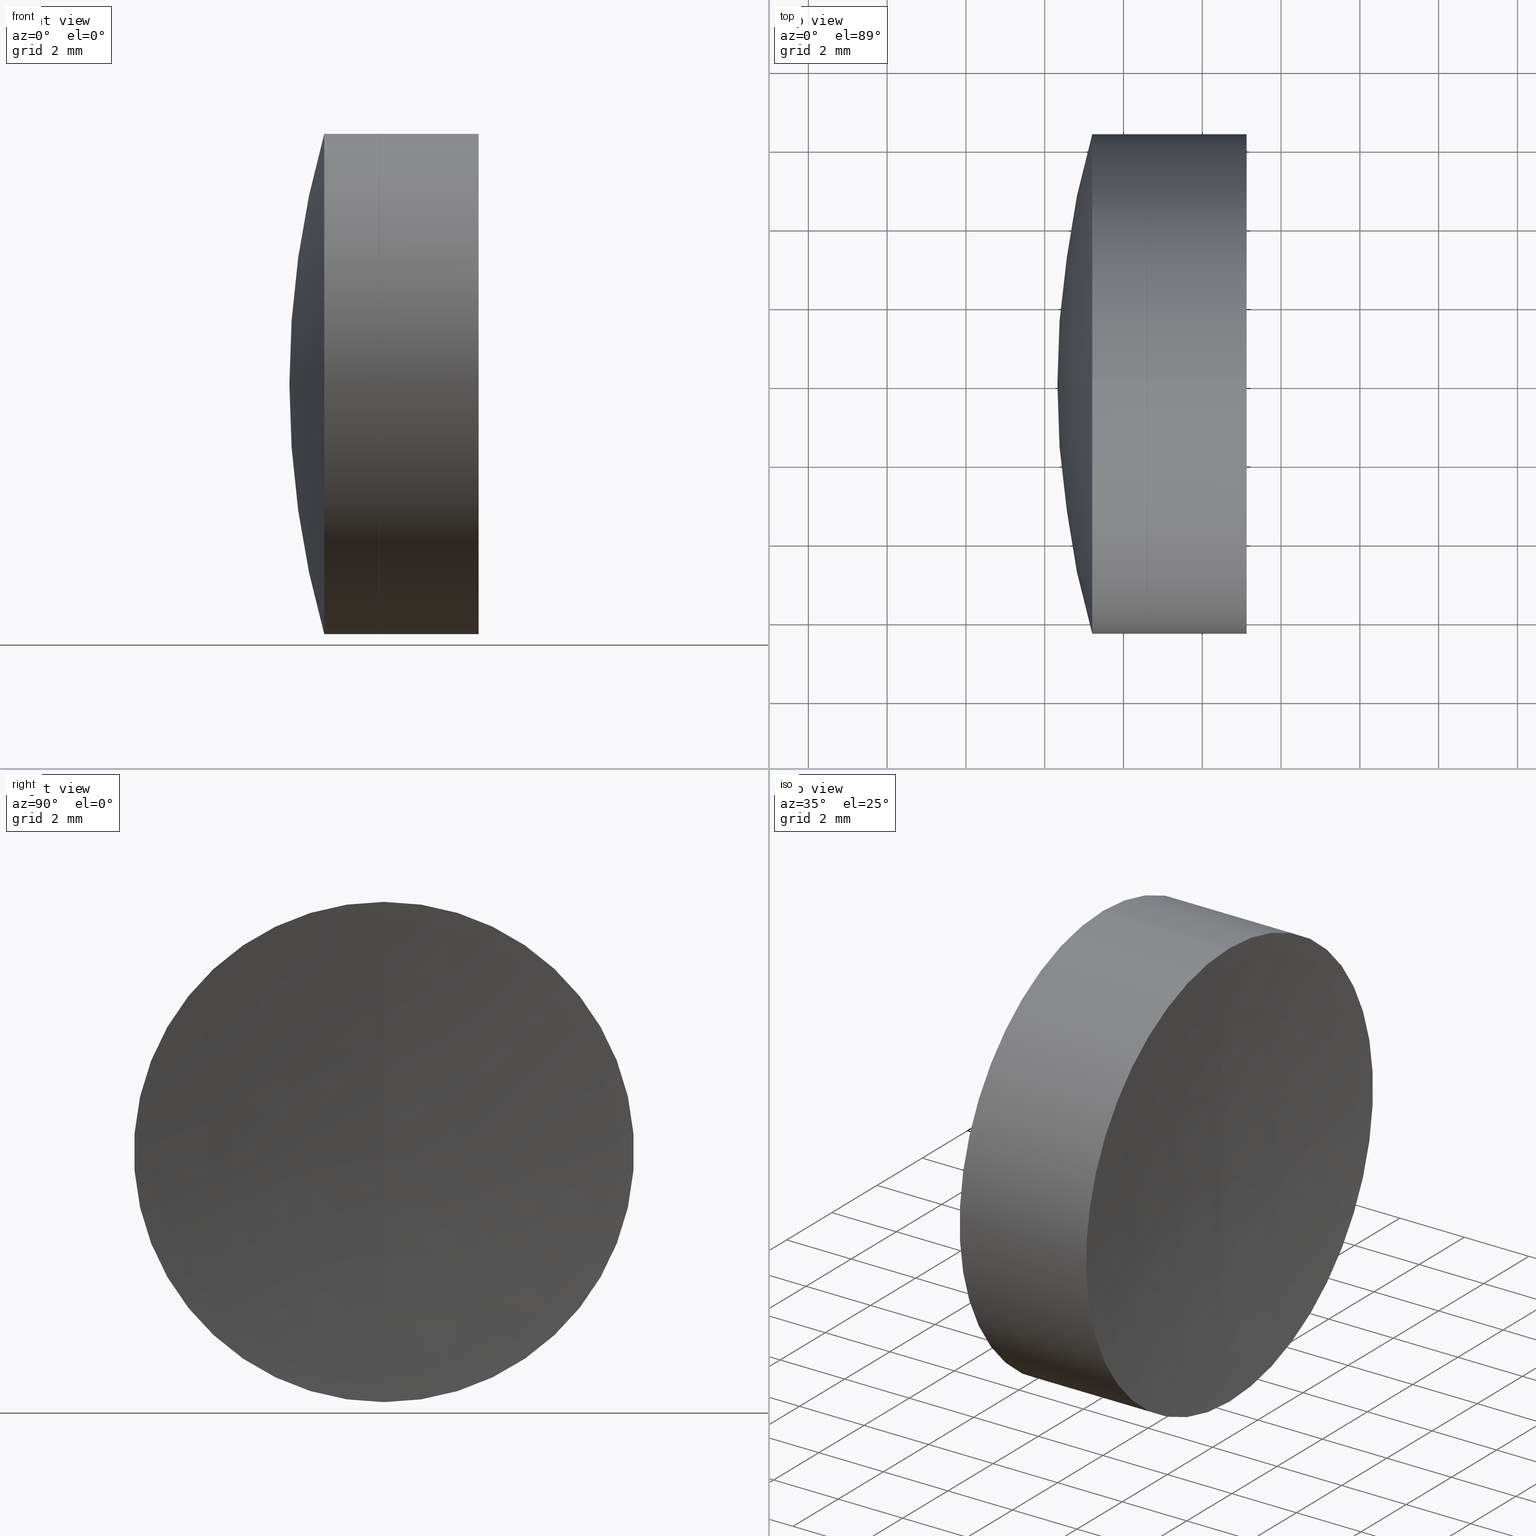
[diagram: canonical four-view strip — front | top / right | iso, engineering-drawing reading convention]
A machine part, canonical four-view strip (front | top / right | iso — engineering-drawing reading convention). The complete STEP part file that produces these views, byte-faithful:
ISO-10303-21;
HEADER;
FILE_DESCRIPTION (( 'STEP AP214' ),
    '1' );
FILE_NAME ('145157.STEP',
    '2019-06-07T02:41:48',
    ( 'user' ),
    ( '΢���й�' ),
    'SwSTEP 2.0',
    'SolidWorks 2016',
    '' );
FILE_SCHEMA (( 'AUTOMOTIVE_DESIGN' ));
ENDSEC;

DATA;
#1 = AXIS2_PLACEMENT_3D ( 'NONE', #180, #181, #120 ) ;
#2 = SPHERICAL_SURFACE ( 'NONE', #262, 27.86000000000000300 ) ;
#3 = COLOUR_RGB ( '',1.000000000000000000, 1.000000000000000000, 1.000000000000000000 ) ;
#4 = PRODUCT_CONTEXT ( 'NONE', #155, 'mechanical' ) ;
#5 = CARTESIAN_POINT ( 'NONE',  ( 37.20671594264952400, 0.0000000000000000000, 0.0000000000000000000 ) ) ;
#6 = EDGE_LOOP ( 'NONE', ( #126, #276, #92, #60 ) ) ;
#7 = FILL_AREA_STYLE ('',( #102 ) ) ;
#8 = ORIENTED_EDGE ( 'NONE', *, *, #342, .T. ) ;
#9 = CIRCLE ( 'NONE', #88, 27.86000000000000300 ) ;
#10 = CARTESIAN_POINT ( 'NONE',  ( -0.8160621761658039000, 7.776507174585693100E-016, -6.350000000000000500 ) ) ;
#11 = SURFACE_SIDE_STYLE ('',( #319 ) ) ;
#12 = APPLICATION_PROTOCOL_DEFINITION ( 'draft international standard', 'automotive_design', 1998, #155 ) ;
#13 = EDGE_CURVE ( 'NONE', #200, #246, #9, .T. ) ;
#14 = EDGE_CURVE ( 'NONE', #107, #101, #131, .T. ) ;
#15 = ADVANCED_FACE ( 'NONE', ( #70 ), #144, .T. ) ;
#16 = AXIS2_PLACEMENT_3D ( 'NONE', #203, #195, #282 ) ;
#17 = CYLINDRICAL_SURFACE ( 'NONE', #1, 6.350000000000000500 ) ;
#18 = ORIENTED_EDGE ( 'NONE', *, *, #275, .T. ) ;
#19 = AXIS2_PLACEMENT_3D ( 'NONE', #32, #57, #94 ) ;
#20 = ORIENTED_EDGE ( 'NONE', *, *, #146, .F. ) ;
#21 = CARTESIAN_POINT ( 'NONE',  ( -0.5519199926577972300, 7.776507174585664600E-016, -6.349999999999977400 ) ) ;
#22 = DIRECTION ( 'NONE',  ( 0.0000000000000000000, 1.224646799147353200E-016, -1.000000000000000000 ) ) ;
#23 = UNCERTAINTY_MEASURE_WITH_UNIT (LENGTH_MEASURE( 1.000000000000000100E-005 ), #253, 'distance_accuracy_value', 'NONE');
#24 = ORIENTED_EDGE ( 'NONE', *, *, #132, .T. ) ;
#25 = DIRECTION ( 'NONE',  ( 0.0000000000000000000, 0.0000000000000000000, 1.000000000000000000 ) ) ;
#26 = ORIENTED_EDGE ( 'NONE', *, *, #343, .T. ) ;
#27 = CIRCLE ( 'NONE', #128, 23.23000000000000400 ) ;
#28 = CARTESIAN_POINT ( 'NONE',  ( 59.55197047241490100, 0.0000000000000000000, 1.024019535267817800E-015 ) ) ;
#29 = DIRECTION ( 'NONE',  ( 0.0000000000000000000, 0.0000000000000000000, 1.000000000000000000 ) ) ;
#30 = LINE ( 'NONE', #21, #61 ) ;
#31 = EDGE_CURVE ( 'NONE', #93, #101, #295, .T. ) ;
#32 = CARTESIAN_POINT ( 'NONE',  ( 11.46197047241490300, 0.0000000000000000000, 2.106783712148525000E-015 ) ) ;
#33 = ORIENTED_EDGE ( 'NONE', *, *, #328, .T. ) ;
#34 = AXIS2_PLACEMENT_3D ( 'NONE', #244, #229, #41 ) ;
#35 = ORIENTED_EDGE ( 'NONE', *, *, #241, .T. ) ;
#36 = DIRECTION ( 'NONE',  ( -0.0000000000000000000, -1.000000000000000000, -0.0000000000000000000 ) ) ;
#37 = AXIS2_PLACEMENT_3D ( 'NONE', #158, #201, #329 ) ;
#38 = CARTESIAN_POINT ( 'NONE',  ( 41.12501739380486000, 0.0000000000000000000, -6.350000000000002300 ) ) ;
#39 = DIRECTION ( 'NONE',  ( 0.0000000000000000000, 0.0000000000000000000, 1.000000000000000000 ) ) ;
#40 = FILL_AREA_STYLE ('',( #228 ) ) ;
#41 = DIRECTION ( 'NONE',  ( 0.0000000000000000000, 0.0000000000000000000, 1.000000000000000000 ) ) ;
#42 = ADVANCED_FACE ( 'NONE', ( #251 ), #265, .F. ) ;
#43 = VERTEX_POINT ( 'NONE', #173 ) ;
#44 = DIRECTION ( 'NONE',  ( 0.0000000000000000000, 1.000000000000000000, -0.0000000000000000000 ) ) ;
#45 = ORIENTED_EDGE ( 'NONE', *, *, #31, .T. ) ;
#46 = SURFACE_SIDE_STYLE ('',( #113 ) ) ;
#47 = MANIFOLD_SOLID_BREP ( '��ת1', #160 ) ;
#48 = ORIENTED_EDGE ( 'NONE', *, *, #342, .F. ) ;
#49 = EDGE_CURVE ( 'NONE', #43, #50, #64, .T. ) ;
#50 = VERTEX_POINT ( 'NONE', #38 ) ;
#51 = AXIS2_PLACEMENT_3D ( 'NONE', #266, #84, #218 ) ;
#52 =( NAMED_UNIT ( * ) PLANE_ANGLE_UNIT ( ) SI_UNIT ( $, .RADIAN. ) );
#53 = AXIS2_PLACEMENT_3D ( 'NONE', #78, #56, #242 ) ;
#54 = LINE ( 'NONE', #10, #65 ) ;
#55 = DIRECTION ( 'NONE',  ( -1.000000000000000000, -0.0000000000000000000, -0.0000000000000000000 ) ) ;
#56 = DIRECTION ( 'NONE',  ( -1.000000000000000000, -0.0000000000000000000, -0.0000000000000000000 ) ) ;
#57 = DIRECTION ( 'NONE',  ( 0.0000000000000000000, -1.000000000000000000, 0.0000000000000000000 ) ) ;
#58 = ORIENTED_EDGE ( 'NONE', *, *, #31, .F. ) ;
#59 = CIRCLE ( 'NONE', #300, 6.349999999999977400 ) ;
#60 = ORIENTED_EDGE ( 'NONE', *, *, #241, .F. ) ;
#61 = VECTOR ( 'NONE', #89, 1000.000000000000000 ) ;
#62 = CIRCLE ( 'NONE', #73, 6.350000000000000500 ) ;
#63 = DIRECTION ( 'NONE',  ( 0.0000000000000000000, 0.0000000000000000000, -1.000000000000000000 ) ) ;
#64 = CIRCLE ( 'NONE', #219, 6.349999999999976600 ) ;
#65 = VECTOR ( 'NONE', #333, 1000.000000000000000 ) ;
#66 = DIRECTION ( 'NONE',  ( -1.000000000000000000, -0.0000000000000000000, -0.0000000000000000000 ) ) ;
#67 = PRESENTATION_LAYER_ASSIGNMENT (  '', '', ( #272 ) ) ;
#68 = DIRECTION ( 'NONE',  ( 0.0000000000000000000, -1.224646799147353200E-016, 1.000000000000000000 ) ) ;
#69 = CARTESIAN_POINT ( 'NONE',  ( -0.5519199926577972300, 0.0000000000000000000, 0.0000000000000000000 ) ) ;
#70 = FACE_OUTER_BOUND ( 'NONE', #168, .T. ) ;
#71 = ADVANCED_FACE ( 'NONE', ( #299 ), #2, .F. ) ;
#72 = EDGE_CURVE ( 'NONE', #101, #117, #54, .T. ) ;
#73 = AXIS2_PLACEMENT_3D ( 'NONE', #5, #326, #29 ) ;
#74 = CIRCLE ( 'NONE', #19, 27.86000000000000300 ) ;
#75 = AXIS2_PLACEMENT_3D ( 'NONE', #215, #248, #320 ) ;
#76 = ORIENTED_EDGE ( 'NONE', *, *, #312, .F. ) ;
#77 = CIRCLE ( 'NONE', #212, 66.68000000000000700 ) ;
#78 = CARTESIAN_POINT ( 'NONE',  ( 38.58865659512440500, 0.0000000000000000000, 0.0000000000000000000 ) ) ;
#79 = VERTEX_POINT ( 'NONE', #284 ) ;
#80 = SPHERICAL_SURFACE ( 'NONE', #37, 66.68000000000000700 ) ;
#81 = SPHERICAL_SURFACE ( 'NONE', #112, 23.23000000000000400 ) ;
#82 = DIRECTION ( 'NONE',  ( 0.0000000000000000000, 1.000000000000000000, -0.0000000000000000000 ) ) ;
#83 = EDGE_LOOP ( 'NONE', ( #45, #108, #122, #20 ) ) ;
#84 = DIRECTION ( 'NONE',  ( -0.0000000000000000000, -1.000000000000000000, -0.0000000000000000000 ) ) ;
#85 = MECHANICAL_DESIGN_GEOMETRIC_PRESENTATION_REPRESENTATION (  '', ( #272 ), #104 ) ;
#86 = CARTESIAN_POINT ( 'NONE',  ( 11.46197047241490300, 0.0000000000000000000, 2.106783712148525000E-015 ) ) ;
#87 = ADVANCED_BREP_SHAPE_REPRESENTATION ( '145157', ( #47, #338, #156 ), #239 ) ;
#88 = AXIS2_PLACEMENT_3D ( 'NONE', #189, #44, #270 ) ;
#89 = DIRECTION ( 'NONE',  ( -1.000000000000000000, -0.0000000000000000000, -0.0000000000000000000 ) ) ;
#90 = AXIS2_PLACEMENT_3D ( 'NONE', #86, #136, #25 ) ;
#91 = CARTESIAN_POINT ( 'NONE',  ( -0.5519199926577972300, 0.0000000000000000000, 6.349999999999977400 ) ) ;
#92 = ORIENTED_EDGE ( 'NONE', *, *, #183, .T. ) ;
#93 = VERTEX_POINT ( 'NONE', #273 ) ;
#94 = DIRECTION ( 'NONE',  ( 0.0000000000000000000, 0.0000000000000000000, -1.000000000000000000 ) ) ;
#95 = AXIS2_PLACEMENT_3D ( 'NONE', #209, #204, #335 ) ;
#96 = CARTESIAN_POINT ( 'NONE',  ( 38.58865659512439800, 7.776507174585693100E-016, -6.350000000000000500 ) ) ;
#97 = DIRECTION ( 'NONE',  ( 0.0000000000000000000, 0.0000000000000000000, -1.000000000000000000 ) ) ;
#98 = ADVANCED_FACE ( 'NONE', ( #221 ), #301, .T. ) ;
#99 = EDGE_LOOP ( 'NONE', ( #186, #222, #58 ) ) ;
#100 = CARTESIAN_POINT ( 'NONE',  ( 38.58865659512440500, 0.0000000000000000000, -6.349999999999976600 ) ) ;
#101 = VERTEX_POINT ( 'NONE', #96 ) ;
#102 = FILL_AREA_STYLE_COLOUR ( '', #271 ) ;
#103 =( LENGTH_UNIT ( ) NAMED_UNIT ( * ) SI_UNIT ( .MILLI., .METRE. ) );
#104 =( GEOMETRIC_REPRESENTATION_CONTEXT ( 3 ) GLOBAL_UNCERTAINTY_ASSIGNED_CONTEXT ( ( #23 ) ) GLOBAL_UNIT_ASSIGNED_CONTEXT ( ( #253, #321, #135 ) ) REPRESENTATION_CONTEXT ( 'NONE', 'WORKASPACE' ) );
#105 = CIRCLE ( 'NONE', #95, 66.68000000000000700 ) ;
#106 = AXIS2_PLACEMENT_3D ( 'NONE', #304, #259, #68 ) ;
#107 = VERTEX_POINT ( 'NONE', #346 ) ;
#108 = ORIENTED_EDGE ( 'NONE', *, *, #72, .T. ) ;
#109 = AXIS2_PLACEMENT_3D ( 'NONE', #331, #179, #22 ) ;
#110 = APPLICATION_PROTOCOL_DEFINITION ( 'draft international standard', 'automotive_design', 1998, #164 ) ;
#111 = DIRECTION ( 'NONE',  ( 0.0000000000000000000, 0.0000000000000000000, 1.000000000000000000 ) ) ;
#112 = AXIS2_PLACEMENT_3D ( 'NONE', #250, #36, #63 ) ;
#113 = SURFACE_STYLE_FILL_AREA ( #7 ) ;
#114 = DIRECTION ( 'NONE',  ( -1.000000000000000000, -0.0000000000000000000, -0.0000000000000000000 ) ) ;
#115 = DIRECTION ( 'NONE',  ( 0.0000000000000000000, 0.0000000000000000000, 1.000000000000000000 ) ) ;
#116 = ORIENTED_EDGE ( 'NONE', *, *, #49, .F. ) ;
#117 = VERTEX_POINT ( 'NONE', #334 ) ;
#118 = CYLINDRICAL_SURFACE ( 'NONE', #316, 6.349999999999977400 ) ;
#119 =( NAMED_UNIT ( * ) SI_UNIT ( $, .STERADIAN. ) SOLID_ANGLE_UNIT ( ) );
#120 = DIRECTION ( 'NONE',  ( 0.0000000000000000000, 0.0000000000000000000, 1.000000000000000000 ) ) ;
#121 = DIRECTION ( 'NONE',  ( 0.0000000000000000000, 0.0000000000000000000, 1.000000000000000000 ) ) ;
#122 = ORIENTED_EDGE ( 'NONE', *, *, #197, .F. ) ;
#123 = PRODUCT_DEFINITION_CONTEXT ( 'detailed design', #164, 'design' ) ;
#124 = STYLED_ITEM ( 'NONE', ( #210 ), #47 ) ;
#125 = ADVANCED_FACE ( 'NONE', ( #208 ), #118, .T. ) ;
#126 = ORIENTED_EDGE ( 'NONE', *, *, #132, .F. ) ;
#127 = STYLED_ITEM ( 'NONE', ( #324 ), #338 ) ;
#128 = AXIS2_PLACEMENT_3D ( 'NONE', #28, #163, #111 ) ;
#129 = SURFACE_SIDE_STYLE ('',( #291 ) ) ;
#130 = VECTOR ( 'NONE', #307, 1000.000000000000000 ) ;
#131 = CIRCLE ( 'NONE', #106, 27.86000000000000300 ) ;
#132 = EDGE_CURVE ( 'NONE', #50, #246, #30, .T. ) ;
#133 = CARTESIAN_POINT ( 'NONE',  ( 39.32197047241490400, 0.0000000000000000000, 4.008507209362616000E-016 ) ) ;
#134 = ORIENTED_EDGE ( 'NONE', *, *, #343, .F. ) ;
#135 =( NAMED_UNIT ( * ) SI_UNIT ( $, .STERADIAN. ) SOLID_ANGLE_UNIT ( ) );
#136 = DIRECTION ( 'NONE',  ( 0.0000000000000000000, 1.000000000000000000, 0.0000000000000000000 ) ) ;
#137 = CARTESIAN_POINT ( 'NONE',  ( -0.8160621761658039000, 0.0000000000000000000, 0.0000000000000000000 ) ) ;
#138 = VERTEX_POINT ( 'NONE', #227 ) ;
#139 = CARTESIAN_POINT ( 'NONE',  ( 37.20671594264951700, -7.776507174585689200E-016, 6.349999999999997900 ) ) ;
#140 = AXIS2_PLACEMENT_3D ( 'NONE', #148, #311, #286 ) ;
#141 =( LENGTH_UNIT ( ) NAMED_UNIT ( * ) SI_UNIT ( .MILLI., .METRE. ) );
#142 = PRESENTATION_LAYER_ASSIGNMENT (  '', '', ( #127 ) ) ;
#143 = DIRECTION ( 'NONE',  ( 0.0000000000000000000, 0.0000000000000000000, 1.000000000000000000 ) ) ;
#144 = CYLINDRICAL_SURFACE ( 'NONE', #159, 6.350000000000000500 ) ;
#145 = CARTESIAN_POINT ( 'NONE',  ( 11.46197047241490300, 0.0000000000000000000, 2.106783712148525000E-015 ) ) ;
#146 = EDGE_CURVE ( 'NONE', #93, #206, #196, .T. ) ;
#147 = ORIENTED_EDGE ( 'NONE', *, *, #13, .F. ) ;
#148 = CARTESIAN_POINT ( 'NONE',  ( 38.58865659512439800, 0.0000000000000000000, 0.0000000000000000000 ) ) ;
#149 = DIRECTION ( 'NONE',  ( 0.0000000000000000000, 0.0000000000000000000, 1.000000000000000000 ) ) ;
#150 = ORIENTED_EDGE ( 'NONE', *, *, #13, .T. ) ;
#151 = UNCERTAINTY_MEASURE_WITH_UNIT (LENGTH_MEASURE( 1.000000000000000100E-005 ), #141, 'distance_accuracy_value', 'NONE');
#152 = CARTESIAN_POINT ( 'NONE',  ( 11.46197047241490300, 0.0000000000000000000, 2.106783712148525000E-015 ) ) ;
#153 = FACE_OUTER_BOUND ( 'NONE', #330, .T. ) ;
#154 = VERTEX_POINT ( 'NONE', #240 ) ;
#155 = APPLICATION_CONTEXT ( 'automotive_design' ) ;
#156 = AXIS2_PLACEMENT_3D ( 'NONE', #339, #267, #263 ) ;
#157 = SURFACE_STYLE_USAGE ( .BOTH. , #129 ) ;
#158 = CARTESIAN_POINT ( 'NONE',  ( 107.5019704724149100, 0.0000000000000000000, 0.0000000000000000000 ) ) ;
#159 = AXIS2_PLACEMENT_3D ( 'NONE', #137, #185, #115 ) ;
#160 = CLOSED_SHELL ( 'NONE', ( #98, #174, #287, #260, #15, #313 ) ) ;
#161 = MECHANICAL_DESIGN_GEOMETRIC_PRESENTATION_REPRESENTATION (  '', ( #127 ), #178 ) ;
#162 = ORIENTED_EDGE ( 'NONE', *, *, #328, .F. ) ;
#163 = DIRECTION ( 'NONE',  ( 0.0000000000000000000, 1.000000000000000000, -0.0000000000000000000 ) ) ;
#164 = APPLICATION_CONTEXT ( 'automotive_design' ) ;
#165 = CARTESIAN_POINT ( 'NONE',  ( 41.12501739380485300, 0.0000000000000000000, 0.0000000000000000000 ) ) ;
#166 = EDGE_CURVE ( 'NONE', #154, #246, #59, .T. ) ;
#167 = EDGE_LOOP ( 'NONE', ( #116, #18, #134 ) ) ;
#168 = EDGE_LOOP ( 'NONE', ( #302, #261, #175, #290 ) ) ;
#169 = CIRCLE ( 'NONE', #332, 6.350000000000000500 ) ;
#170 = SURFACE_STYLE_USAGE ( .BOTH. , #11 ) ;
#171 = PRODUCT_DEFINITION ( 'δ֪', '', #190, #123 ) ;
#172 = CARTESIAN_POINT ( 'NONE',  ( 37.20671594264952400, 0.0000000000000000000, 0.0000000000000000000 ) ) ;
#173 = CARTESIAN_POINT ( 'NONE',  ( 41.12501739380486000, -7.776507174585695100E-016, 6.350000000000002300 ) ) ;
#174 = ADVANCED_FACE ( 'NONE', ( #230 ), #17, .T. ) ;
#175 = ORIENTED_EDGE ( 'NONE', *, *, #146, .T. ) ;
#176 = AXIS2_PLACEMENT_3D ( 'NONE', #337, #199, #97 ) ;
#177 = ORIENTED_EDGE ( 'NONE', *, *, #14, .F. ) ;
#178 =( GEOMETRIC_REPRESENTATION_CONTEXT ( 3 ) GLOBAL_UNCERTAINTY_ASSIGNED_CONTEXT ( ( #207 ) ) GLOBAL_UNIT_ASSIGNED_CONTEXT ( ( #103, #325, #274 ) ) REPRESENTATION_CONTEXT ( 'NONE', 'WORKASPACE' ) );
#179 = DIRECTION ( 'NONE',  ( 0.0000000000000000000, -1.000000000000000000, -1.224646799147353200E-016 ) ) ;
#180 = CARTESIAN_POINT ( 'NONE',  ( -0.8160621761658039000, 0.0000000000000000000, 0.0000000000000000000 ) ) ;
#181 = DIRECTION ( 'NONE',  ( -1.000000000000000000, -0.0000000000000000000, -0.0000000000000000000 ) ) ;
#182 = FACE_OUTER_BOUND ( 'NONE', #340, .T. ) ;
#183 = EDGE_CURVE ( 'NONE', #43, #154, #344, .T. ) ;
#184 = ORIENTED_EDGE ( 'NONE', *, *, #294, .F. ) ;
#185 = DIRECTION ( 'NONE',  ( -1.000000000000000000, -0.0000000000000000000, -0.0000000000000000000 ) ) ;
#186 = ORIENTED_EDGE ( 'NONE', *, *, #258, .F. ) ;
#187 = DIRECTION ( 'NONE',  ( 0.0000000000000000000, 1.224646799147353200E-016, -1.000000000000000000 ) ) ;
#188 = CIRCLE ( 'NONE', #34, 6.350000000000000500 ) ;
#189 = CARTESIAN_POINT ( 'NONE',  ( 11.46197047241490300, 0.0000000000000000000, 2.106783712148525000E-015 ) ) ;
#190 = PRODUCT_DEFINITION_FORMATION_WITH_SPECIFIED_SOURCE ( '�κ�', '', #224, .NOT_KNOWN. ) ;
#191 = EDGE_LOOP ( 'NONE', ( #252, #24, #306, #192 ) ) ;
#192 = ORIENTED_EDGE ( 'NONE', *, *, #183, .F. ) ;
#193 = PRESENTATION_LAYER_ASSIGNMENT (  '', '', ( #124 ) ) ;
#194 = AXIS2_PLACEMENT_3D ( 'NONE', #213, #238, #187 ) ;
#195 = DIRECTION ( 'NONE',  ( -0.0000000000000000000, -1.000000000000000000, -0.0000000000000000000 ) ) ;
#196 = LINE ( 'NONE', #297, #249 ) ;
#197 = EDGE_CURVE ( 'NONE', #206, #117, #169, .T. ) ;
#198 = ORIENTED_EDGE ( 'NONE', *, *, #258, .T. ) ;
#199 = DIRECTION ( 'NONE',  ( -0.0000000000000000000, -1.000000000000000000, -0.0000000000000000000 ) ) ;
#200 = VERTEX_POINT ( 'NONE', #133 ) ;
#201 = DIRECTION ( 'NONE',  ( -0.0000000000000000000, -1.000000000000000000, -0.0000000000000000000 ) ) ;
#202 = FACE_OUTER_BOUND ( 'NONE', #191, .T. ) ;
#203 = CARTESIAN_POINT ( 'NONE',  ( 59.55197047241490100, 0.0000000000000000000, 1.024019535267817800E-015 ) ) ;
#204 = DIRECTION ( 'NONE',  ( 0.0000000000000000000, -1.000000000000000000, -1.224646799147353200E-016 ) ) ;
#205 = PRODUCT_RELATED_PRODUCT_CATEGORY ( 'part', '', ( #224 ) ) ;
#206 = VERTEX_POINT ( 'NONE', #139 ) ;
#207 = UNCERTAINTY_MEASURE_WITH_UNIT (LENGTH_MEASURE( 1.000000000000000100E-005 ), #103, 'distance_accuracy_value', 'NONE');
#208 = FACE_OUTER_BOUND ( 'NONE', #6, .T. ) ;
#209 = CARTESIAN_POINT ( 'NONE',  ( 107.5019704724149100, 0.0000000000000000000, 0.0000000000000000000 ) ) ;
#210 = PRESENTATION_STYLE_ASSIGNMENT (( #170 ) ) ;
#211 = MECHANICAL_DESIGN_GEOMETRIC_PRESENTATION_REPRESENTATION (  '', ( #124 ), #234 ) ;
#212 = AXIS2_PLACEMENT_3D ( 'NONE', #269, #82, #322 ) ;
#213 = CARTESIAN_POINT ( 'NONE',  ( 11.46197047241490300, 0.0000000000000000000, 2.106783712148525000E-015 ) ) ;
#214 = DIRECTION ( 'NONE',  ( 0.0000000000000000000, 0.0000000000000000000, 1.000000000000000000 ) ) ;
#215 = CARTESIAN_POINT ( 'NONE',  ( -0.5519199926577972300, 0.0000000000000000000, 0.0000000000000000000 ) ) ;
#216 = ORIENTED_EDGE ( 'NONE', *, *, #294, .T. ) ;
#217 = EDGE_CURVE ( 'NONE', #50, #43, #288, .T. ) ;
#218 = DIRECTION ( 'NONE',  ( 0.0000000000000000000, 0.0000000000000000000, -1.000000000000000000 ) ) ;
#219 = AXIS2_PLACEMENT_3D ( 'NONE', #226, #66, #39 ) ;
#220 = FACE_OUTER_BOUND ( 'NONE', #314, .T. ) ;
#221 = FACE_OUTER_BOUND ( 'NONE', #99, .T. ) ;
#222 = ORIENTED_EDGE ( 'NONE', *, *, #14, .T. ) ;
#223 = DIRECTION ( 'NONE',  ( -1.000000000000000000, -0.0000000000000000000, -0.0000000000000000000 ) ) ;
#224 = PRODUCT ( '145157', '145157', '', ( #4 ) ) ;
#225 = SPHERICAL_SURFACE ( 'NONE', #51, 27.86000000000000300 ) ;
#226 = CARTESIAN_POINT ( 'NONE',  ( 41.12501739380485300, 0.0000000000000000000, 0.0000000000000000000 ) ) ;
#227 = CARTESIAN_POINT ( 'NONE',  ( 36.32197047241489700, 0.0000000000000000000, -3.984077219418332500E-016 ) ) ;
#228 = FILL_AREA_STYLE_COLOUR ( '', #289 ) ;
#229 = DIRECTION ( 'NONE',  ( -1.000000000000000000, -0.0000000000000000000, -0.0000000000000000000 ) ) ;
#230 = FACE_OUTER_BOUND ( 'NONE', #83, .T. ) ;
#231 = SPHERICAL_SURFACE ( 'NONE', #16, 23.23000000000000400 ) ;
#232 = ADVANCED_FACE ( 'NONE', ( #182 ), #80, .F. ) ;
#233 = ADVANCED_FACE ( 'NONE', ( #202 ), #254, .T. ) ;
#234 =( GEOMETRIC_REPRESENTATION_CONTEXT ( 3 ) GLOBAL_UNCERTAINTY_ASSIGNED_CONTEXT ( ( #277 ) ) GLOBAL_UNIT_ASSIGNED_CONTEXT ( ( #336, #309, #119 ) ) REPRESENTATION_CONTEXT ( 'NONE', 'WORKASPACE' ) );
#235 = CLOSED_SHELL ( 'NONE', ( #233, #42, #71, #305, #232, #125 ) ) ;
#236 = EDGE_LOOP ( 'NONE', ( #177, #198, #76 ) ) ;
#237 = CIRCLE ( 'NONE', #53, 6.349999999999977400 ) ;
#238 = DIRECTION ( 'NONE',  ( 0.0000000000000000000, -1.000000000000000000, -1.224646799147353200E-016 ) ) ;
#239 =( GEOMETRIC_REPRESENTATION_CONTEXT ( 3 ) GLOBAL_UNCERTAINTY_ASSIGNED_CONTEXT ( ( #151 ) ) GLOBAL_UNIT_ASSIGNED_CONTEXT ( ( #141, #52, #298 ) ) REPRESENTATION_CONTEXT ( 'NONE', 'WORKASPACE' ) );
#240 = CARTESIAN_POINT ( 'NONE',  ( 38.58865659512440500, -7.776507174585663600E-016, 6.349999999999978300 ) ) ;
#241 = EDGE_CURVE ( 'NONE', #246, #154, #237, .T. ) ;
#242 = DIRECTION ( 'NONE',  ( 0.0000000000000000000, 0.0000000000000000000, 1.000000000000000000 ) ) ;
#243 = ORIENTED_EDGE ( 'NONE', *, *, #275, .F. ) ;
#244 = CARTESIAN_POINT ( 'NONE',  ( 38.58865659512439800, 0.0000000000000000000, 0.0000000000000000000 ) ) ;
#245 = ORIENTED_EDGE ( 'NONE', *, *, #327, .T. ) ;
#246 = VERTEX_POINT ( 'NONE', #100 ) ;
#247 = AXIS2_PLACEMENT_3D ( 'NONE', #165, #55, #214 ) ;
#248 = DIRECTION ( 'NONE',  ( -1.000000000000000000, -0.0000000000000000000, -0.0000000000000000000 ) ) ;
#249 = VECTOR ( 'NONE', #114, 1000.000000000000000 ) ;
#250 = CARTESIAN_POINT ( 'NONE',  ( 59.55197047241490100, 0.0000000000000000000, 1.024019535267817800E-015 ) ) ;
#251 = FACE_OUTER_BOUND ( 'NONE', #167, .T. ) ;
#252 = ORIENTED_EDGE ( 'NONE', *, *, #49, .T. ) ;
#253 =( LENGTH_UNIT ( ) NAMED_UNIT ( * ) SI_UNIT ( .MILLI., .METRE. ) );
#254 = CYLINDRICAL_SURFACE ( 'NONE', #75, 6.349999999999977400 ) ;
#255 = EDGE_LOOP ( 'NONE', ( #245, #33, #184 ) ) ;
#256 = CARTESIAN_POINT ( 'NONE',  ( 38.58865659512440500, 0.0000000000000000000, 0.0000000000000000000 ) ) ;
#257 = SPHERICAL_SURFACE ( 'NONE', #90, 27.86000000000000300 ) ;
#258 = EDGE_CURVE ( 'NONE', #107, #93, #74, .T. ) ;
#259 = DIRECTION ( 'NONE',  ( -0.0000000000000000000, 1.000000000000000000, 1.224646799147353200E-016 ) ) ;
#260 = ADVANCED_FACE ( 'NONE', ( #153 ), #81, .T. ) ;
#261 = ORIENTED_EDGE ( 'NONE', *, *, #312, .T. ) ;
#262 = AXIS2_PLACEMENT_3D ( 'NONE', #145, #296, #279 ) ;
#263 = DIRECTION ( 'NONE',  ( 1.000000000000000000, 0.0000000000000000000, 0.0000000000000000000 ) ) ;
#264 = FACE_OUTER_BOUND ( 'NONE', #236, .T. ) ;
#265 = SPHERICAL_SURFACE ( 'NONE', #176, 66.68000000000000700 ) ;
#266 = CARTESIAN_POINT ( 'NONE',  ( 11.46197047241490300, 0.0000000000000000000, 2.106783712148525000E-015 ) ) ;
#267 = DIRECTION ( 'NONE',  ( 0.0000000000000000000, 0.0000000000000000000, 1.000000000000000000 ) ) ;
#268 = ORIENTED_EDGE ( 'NONE', *, *, #197, .T. ) ;
#269 = CARTESIAN_POINT ( 'NONE',  ( 107.5019704724149100, 0.0000000000000000000, 0.0000000000000000000 ) ) ;
#270 = DIRECTION ( 'NONE',  ( 0.0000000000000000000, 0.0000000000000000000, 1.000000000000000000 ) ) ;
#271 = COLOUR_RGB ( '',1.000000000000000000, 1.000000000000000000, 1.000000000000000000 ) ;
#272 = STYLED_ITEM ( 'NONE', ( #283 ), #87 ) ;
#273 = CARTESIAN_POINT ( 'NONE',  ( 38.58865659512439800, 0.0000000000000000000, 6.350000000000000500 ) ) ;
#274 =( NAMED_UNIT ( * ) SI_UNIT ( $, .STERADIAN. ) SOLID_ANGLE_UNIT ( ) );
#275 = EDGE_CURVE ( 'NONE', #43, #79, #105, .T. ) ;
#276 = ORIENTED_EDGE ( 'NONE', *, *, #217, .T. ) ;
#277 = UNCERTAINTY_MEASURE_WITH_UNIT (LENGTH_MEASURE( 1.000000000000000100E-005 ), #336, 'distance_accuracy_value', 'NONE');
#278 = PRODUCT_DEFINITION_SHAPE ( 'NONE', 'NONE',  #171 ) ;
#279 = DIRECTION ( 'NONE',  ( 0.0000000000000000000, 0.0000000000000000000, -1.000000000000000000 ) ) ;
#280 = AXIS2_PLACEMENT_3D ( 'NONE', #152, #341, #292 ) ;
#281 = FACE_OUTER_BOUND ( 'NONE', #255, .T. ) ;
#282 = DIRECTION ( 'NONE',  ( 0.0000000000000000000, 0.0000000000000000000, -1.000000000000000000 ) ) ;
#283 = PRESENTATION_STYLE_ASSIGNMENT (( #157 ) ) ;
#284 = CARTESIAN_POINT ( 'NONE',  ( 40.82197047241491100, 0.0000000000000000000, -4.082972428357275800E-015 ) ) ;
#285 = ORIENTED_EDGE ( 'NONE', *, *, #217, .F. ) ;
#286 = DIRECTION ( 'NONE',  ( 0.0000000000000000000, 0.0000000000000000000, 1.000000000000000000 ) ) ;
#287 = ADVANCED_FACE ( 'NONE', ( #281 ), #231, .T. ) ;
#288 = CIRCLE ( 'NONE', #247, 6.349999999999976600 ) ;
#289 = COLOUR_RGB ( '',1.000000000000000000, 1.000000000000000000, 1.000000000000000000 ) ;
#290 = ORIENTED_EDGE ( 'NONE', *, *, #327, .F. ) ;
#291 = SURFACE_STYLE_FILL_AREA ( #293 ) ;
#292 = DIRECTION ( 'NONE',  ( 0.0000000000000000000, 0.0000000000000000000, 1.000000000000000000 ) ) ;
#293 = FILL_AREA_STYLE ('',( #347 ) ) ;
#294 = EDGE_CURVE ( 'NONE', #117, #138, #27, .T. ) ;
#295 = CIRCLE ( 'NONE', #140, 6.350000000000000500 ) ;
#296 = DIRECTION ( 'NONE',  ( -0.0000000000000000000, -1.000000000000000000, -0.0000000000000000000 ) ) ;
#297 = CARTESIAN_POINT ( 'NONE',  ( -0.8160621761658039000, 0.0000000000000000000, 6.350000000000000500 ) ) ;
#298 =( NAMED_UNIT ( * ) SI_UNIT ( $, .STERADIAN. ) SOLID_ANGLE_UNIT ( ) );
#299 = FACE_OUTER_BOUND ( 'NONE', #345, .T. ) ;
#300 = AXIS2_PLACEMENT_3D ( 'NONE', #256, #223, #143 ) ;
#301 = SPHERICAL_SURFACE ( 'NONE', #280, 27.86000000000000300 ) ;
#302 = ORIENTED_EDGE ( 'NONE', *, *, #72, .F. ) ;
#303 = SHAPE_DEFINITION_REPRESENTATION ( #278, #87 ) ;
#304 = CARTESIAN_POINT ( 'NONE',  ( 11.46197047241490300, 0.0000000000000000000, 2.106783712148525000E-015 ) ) ;
#305 = ADVANCED_FACE ( 'NONE', ( #220 ), #225, .F. ) ;
#306 = ORIENTED_EDGE ( 'NONE', *, *, #166, .F. ) ;
#307 = DIRECTION ( 'NONE',  ( -1.000000000000000000, -0.0000000000000000000, -0.0000000000000000000 ) ) ;
#308 = CIRCLE ( 'NONE', #109, 23.23000000000000400 ) ;
#309 =( NAMED_UNIT ( * ) PLANE_ANGLE_UNIT ( ) SI_UNIT ( $, .RADIAN. ) );
#310 = DIRECTION ( 'NONE',  ( -1.000000000000000000, -0.0000000000000000000, -0.0000000000000000000 ) ) ;
#311 = DIRECTION ( 'NONE',  ( -1.000000000000000000, -0.0000000000000000000, -0.0000000000000000000 ) ) ;
#312 = EDGE_CURVE ( 'NONE', #101, #93, #188, .T. ) ;
#313 = ADVANCED_FACE ( 'NONE', ( #264 ), #257, .T. ) ;
#314 = EDGE_LOOP ( 'NONE', ( #48, #150, #35 ) ) ;
#315 = DIRECTION ( 'NONE',  ( -1.000000000000000000, -0.0000000000000000000, -0.0000000000000000000 ) ) ;
#316 = AXIS2_PLACEMENT_3D ( 'NONE', #69, #315, #149 ) ;
#317 = CIRCLE ( 'NONE', #194, 27.86000000000000300 ) ;
#318 = SURFACE_STYLE_USAGE ( .BOTH. , #46 ) ;
#319 = SURFACE_STYLE_FILL_AREA ( #40 ) ;
#320 = DIRECTION ( 'NONE',  ( 0.0000000000000000000, 0.0000000000000000000, 1.000000000000000000 ) ) ;
#321 =( NAMED_UNIT ( * ) PLANE_ANGLE_UNIT ( ) SI_UNIT ( $, .RADIAN. ) );
#322 = DIRECTION ( 'NONE',  ( 0.0000000000000000000, 0.0000000000000000000, 1.000000000000000000 ) ) ;
#323 = ORIENTED_EDGE ( 'NONE', *, *, #166, .T. ) ;
#324 = PRESENTATION_STYLE_ASSIGNMENT (( #318 ) ) ;
#325 =( NAMED_UNIT ( * ) PLANE_ANGLE_UNIT ( ) SI_UNIT ( $, .RADIAN. ) );
#326 = DIRECTION ( 'NONE',  ( -1.000000000000000000, -0.0000000000000000000, -0.0000000000000000000 ) ) ;
#327 = EDGE_CURVE ( 'NONE', #117, #206, #62, .T. ) ;
#328 = EDGE_CURVE ( 'NONE', #206, #138, #308, .T. ) ;
#329 = DIRECTION ( 'NONE',  ( 0.0000000000000000000, 0.0000000000000000000, -1.000000000000000000 ) ) ;
#330 = EDGE_LOOP ( 'NONE', ( #162, #268, #216 ) ) ;
#331 = CARTESIAN_POINT ( 'NONE',  ( 59.55197047241490100, 0.0000000000000000000, 1.024019535267817800E-015 ) ) ;
#332 = AXIS2_PLACEMENT_3D ( 'NONE', #172, #310, #121 ) ;
#333 = DIRECTION ( 'NONE',  ( -1.000000000000000000, -0.0000000000000000000, -0.0000000000000000000 ) ) ;
#334 = CARTESIAN_POINT ( 'NONE',  ( 37.20671594264951700, 0.0000000000000000000, -6.349999999999997000 ) ) ;
#335 = DIRECTION ( 'NONE',  ( 0.0000000000000000000, 1.224646799147353200E-016, -1.000000000000000000 ) ) ;
#336 =( LENGTH_UNIT ( ) NAMED_UNIT ( * ) SI_UNIT ( .MILLI., .METRE. ) );
#337 = CARTESIAN_POINT ( 'NONE',  ( 107.5019704724149100, 0.0000000000000000000, 0.0000000000000000000 ) ) ;
#338 = MANIFOLD_SOLID_BREP ( '��ת2', #235 ) ;
#339 = CARTESIAN_POINT ( 'NONE',  ( 0.0000000000000000000, 0.0000000000000000000, 0.0000000000000000000 ) ) ;
#340 = EDGE_LOOP ( 'NONE', ( #243, #285, #26 ) ) ;
#341 = DIRECTION ( 'NONE',  ( 0.0000000000000000000, 1.000000000000000000, 0.0000000000000000000 ) ) ;
#342 = EDGE_CURVE ( 'NONE', #200, #154, #317, .T. ) ;
#343 = EDGE_CURVE ( 'NONE', #50, #79, #77, .T. ) ;
#344 = LINE ( 'NONE', #91, #130 ) ;
#345 = EDGE_LOOP ( 'NONE', ( #147, #8, #323 ) ) ;
#346 = CARTESIAN_POINT ( 'NONE',  ( 39.32197047241490400, 0.0000000000000000000, 3.812716703360788000E-015 ) ) ;
#347 = FILL_AREA_STYLE_COLOUR ( '', #3 ) ;
ENDSEC;
END-ISO-10303-21;
